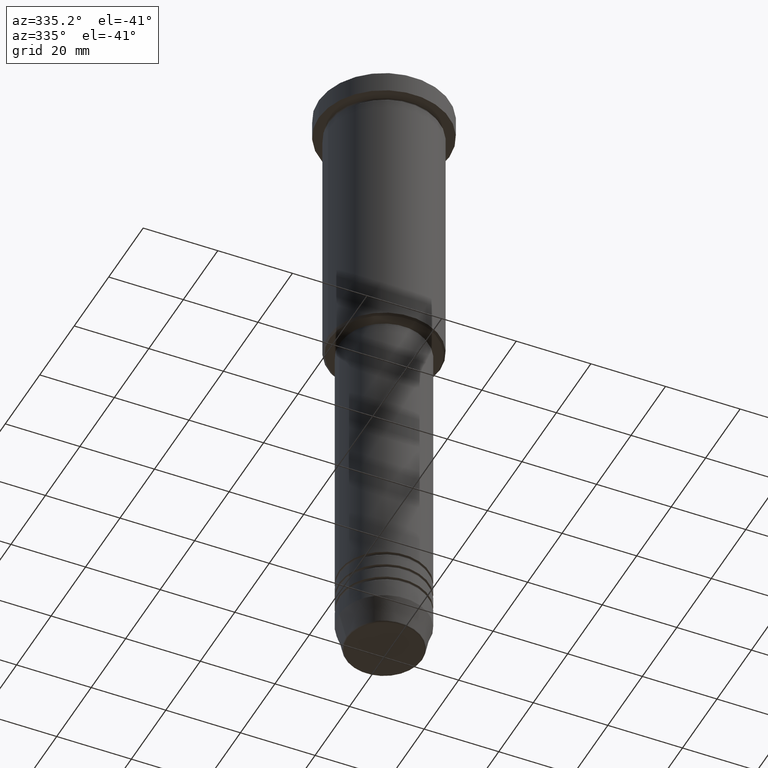
[diagram: clean part render]
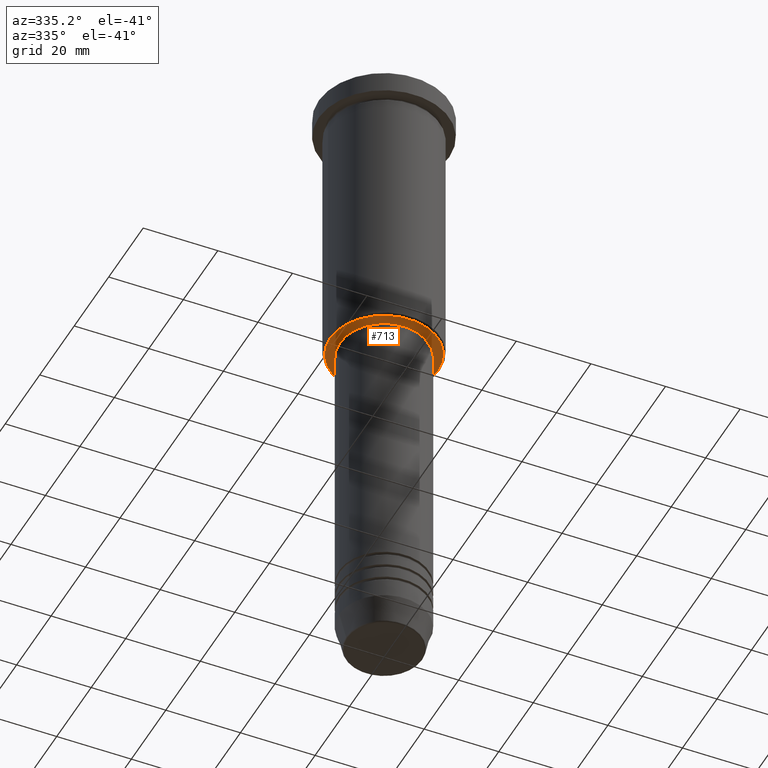
[diagram: same view with one face highlighted and labeled with its STEP entity id]
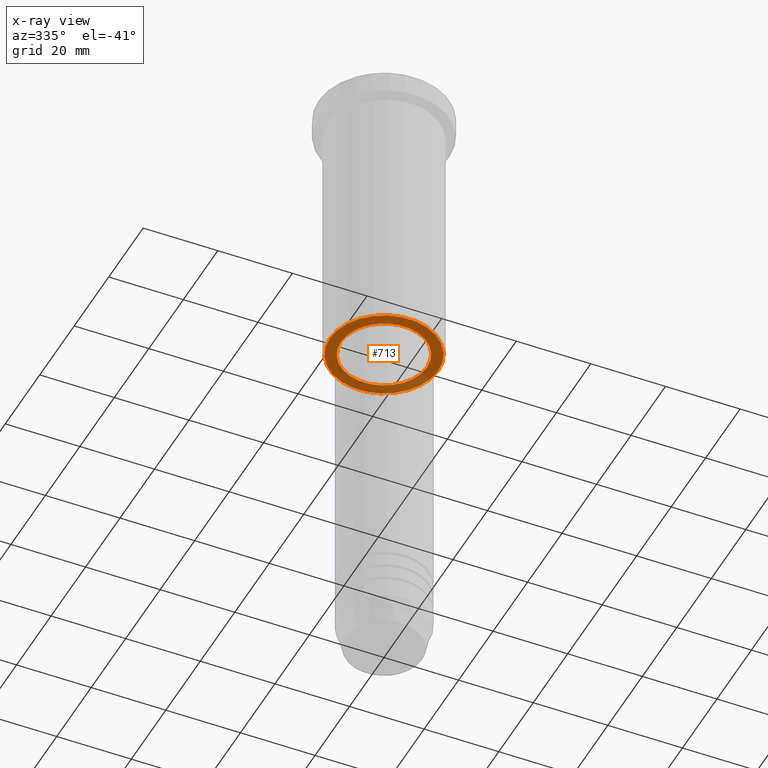
[diagram: x-ray of the same camera — body ghosted, the highlighted face saturated]
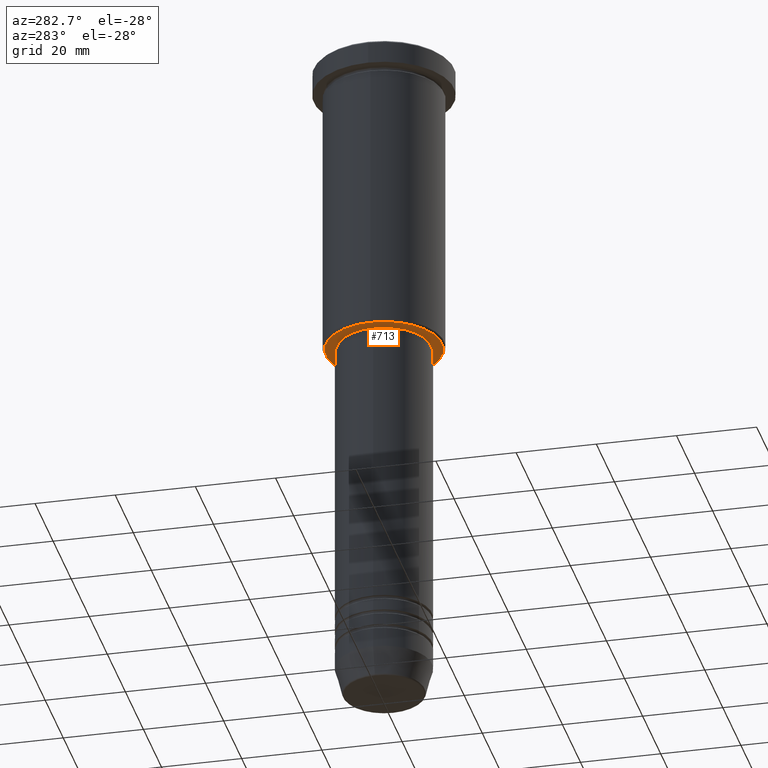
[diagram: same view with one face highlighted and labeled with its STEP entity id]
A machine part, auxiliary view. The second image highlights one B-rep face of the part: STEP entity #713.
The next image is the same camera in x-ray: the body ghosted, the highlighted face saturated — about 29% of this face is hidden behind the body in this view.
A second angle (auxiliary view) of the same face is appended — the face is thin or edge-on in the first view.
In plain terms, the highlighted planar face has unit normal (0, 0, -1).
Its self-contained STEP definition (entity closure, byte-faithful):
#12 = VERTEX_POINT ( 'NONE', #402 ) ;
#33 = DIRECTION ( 'NONE',  ( 0.000000000000000000, 0.000000000000000000, -1.000000000000000000 ) ) ;
#148 = CARTESIAN_POINT ( 'NONE',  ( 0.000000000000000000, 0.000000000000000000, -75.99999999999998579 ) ) ;
#192 = CARTESIAN_POINT ( 'NONE',  ( 14.49999999999996980, 0.000000000000000000, -75.99999999999998579 ) ) ;
#205 = AXIS2_PLACEMENT_3D ( 'NONE', #329, #33, #746 ) ;
#207 = CIRCLE ( 'NONE', #338, 11.50000000000000000 ) ;
#245 = VERTEX_POINT ( 'NONE', #192 ) ;
#246 = DIRECTION ( 'NONE',  ( 0.000000000000000000, 0.000000000000000000, -1.000000000000000000 ) ) ;
#319 = DIRECTION ( 'NONE',  ( -0.000000000000000000, -0.000000000000000000, 1.000000000000000000 ) ) ;
#329 = CARTESIAN_POINT ( 'NONE',  ( 0.000000000000000000, 15.00000000000000000, -75.99999999999998579 ) ) ;
#338 = AXIS2_PLACEMENT_3D ( 'NONE', #1068, #319, #674 ) ;
#354 = ORIENTED_EDGE ( 'NONE', *, *, #1001, .T. ) ;
#358 = CIRCLE ( 'NONE', #847, 11.50000000000000000 ) ;
#402 = CARTESIAN_POINT ( 'NONE',  ( -14.49999999999996980, 1.806354028742344224E-15, -75.99999999999998579 ) ) ;
#403 = FACE_BOUND ( 'NONE', #524, .T. ) ;
#410 = DIRECTION ( 'NONE',  ( 1.000000000000000000, 0.000000000000000000, 0.000000000000000000 ) ) ;
#427 = DIRECTION ( 'NONE',  ( 0.000000000000000000, 0.000000000000000000, -1.000000000000000000 ) ) ;
#496 = EDGE_CURVE ( 'NONE', #245, #12, #503, .T. ) ;
#503 = CIRCLE ( 'NONE', #545, 14.49999999999996980 ) ;
#507 = AXIS2_PLACEMENT_3D ( 'NONE', #148, #427, #677 ) ;
#511 = DIRECTION ( 'NONE',  ( -0.000000000000000000, -0.000000000000000000, 1.000000000000000000 ) ) ;
#524 = EDGE_LOOP ( 'NONE', ( #1085, #354 ) ) ;
#545 = AXIS2_PLACEMENT_3D ( 'NONE', #699, #246, #1087 ) ;
#550 = CARTESIAN_POINT ( 'NONE',  ( 11.50000000000000000, 0.000000000000000000, -75.99999999999998579 ) ) ;
#560 = VERTEX_POINT ( 'NONE', #550 ) ;
#674 = DIRECTION ( 'NONE',  ( 1.000000000000000000, 0.000000000000000000, 0.000000000000000000 ) ) ;
#677 = DIRECTION ( 'NONE',  ( -1.000000000000000000, 0.000000000000000000, 0.000000000000000000 ) ) ;
#699 = CARTESIAN_POINT ( 'NONE',  ( 0.000000000000000000, 0.000000000000000000, -75.99999999999998579 ) ) ;
#713 = ADVANCED_FACE ( 'NONE', ( #1037, #403 ), #1047, .T. ) ;
#746 = DIRECTION ( 'NONE',  ( -1.000000000000000000, 0.000000000000000000, -0.000000000000000000 ) ) ;
#772 = ORIENTED_EDGE ( 'NONE', *, *, #977, .T. ) ;
#847 = AXIS2_PLACEMENT_3D ( 'NONE', #1052, #511, #410 ) ;
#880 = ORIENTED_EDGE ( 'NONE', *, *, #496, .T. ) ;
#907 = EDGE_LOOP ( 'NONE', ( #880, #772 ) ) ;
#977 = EDGE_CURVE ( 'NONE', #12, #245, #1174, .T. ) ;
#978 = EDGE_CURVE ( 'NONE', #560, #1000, #358, .T. ) ;
#1000 = VERTEX_POINT ( 'NONE', #1131 ) ;
#1001 = EDGE_CURVE ( 'NONE', #1000, #560, #207, .T. ) ;
#1037 = FACE_OUTER_BOUND ( 'NONE', #907, .T. ) ;
#1047 = PLANE ( 'NONE',  #205 ) ;
#1052 = CARTESIAN_POINT ( 'NONE',  ( 0.000000000000000000, 0.000000000000000000, -75.99999999999998579 ) ) ;
#1068 = CARTESIAN_POINT ( 'NONE',  ( 0.000000000000000000, 0.000000000000000000, -75.99999999999998579 ) ) ;
#1085 = ORIENTED_EDGE ( 'NONE', *, *, #978, .T. ) ;
#1087 = DIRECTION ( 'NONE',  ( -1.000000000000000000, 0.000000000000000000, 0.000000000000000000 ) ) ;
#1131 = CARTESIAN_POINT ( 'NONE',  ( -11.50000000000000000, 1.408343819019456176E-15, -75.99999999999998579 ) ) ;
#1174 = CIRCLE ( 'NONE', #507, 14.49999999999996980 ) ;